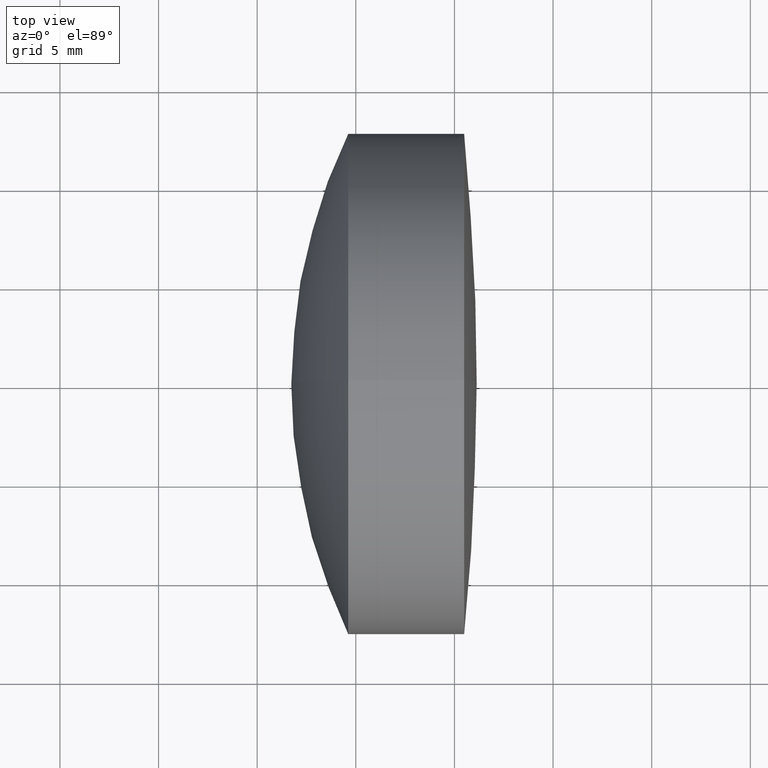
[diagram: clean part render]
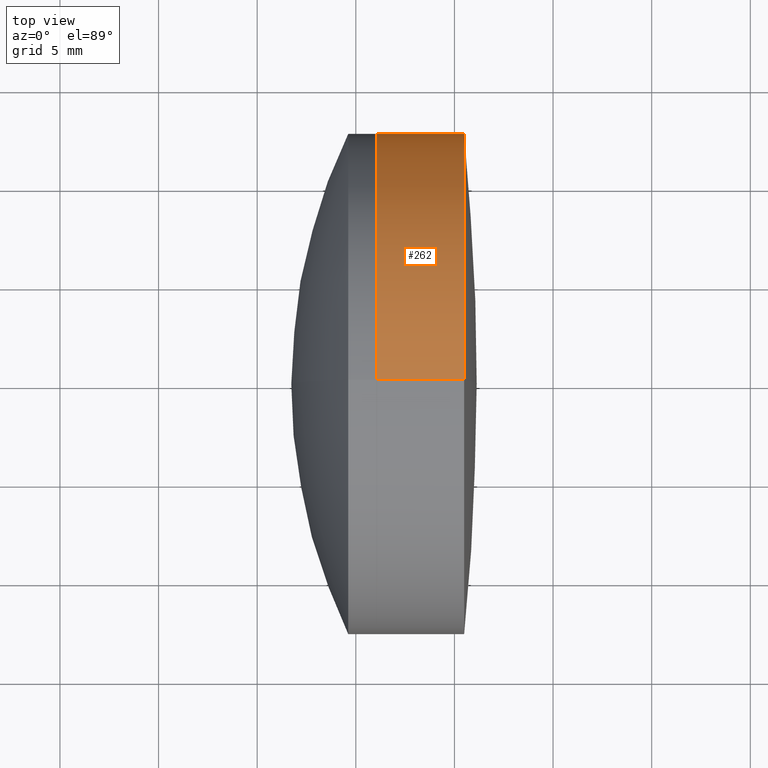
[diagram: same view with one face highlighted and labeled with its STEP entity id]
A machine part, top view. The second image highlights one B-rep face of the part: STEP entity #262.
In plain terms, the highlighted cylindrical surface (partial cylindrical patch) has radius 12.7 mm, axis along (-1, -0, -0).
Its self-contained STEP definition (entity closure, byte-faithful):
#6 = CARTESIAN_POINT ( 'NONE',  ( 290.4926931922049700, 0.0000000000000000000, 12.70000000000000600 ) ) ;
#15 = CIRCLE ( 'NONE', #308, 12.70000000000002400 ) ;
#31 = DIRECTION ( 'NONE',  ( 0.0000000000000000000, 0.0000000000000000000, 1.000000000000000000 ) ) ;
#36 = VECTOR ( 'NONE', #123, 1000.000000000000000 ) ;
#50 = AXIS2_PLACEMENT_3D ( 'NONE', #344, #118, #298 ) ;
#51 = EDGE_CURVE ( 'NONE', #323, #209, #144, .T. ) ;
#96 = EDGE_CURVE ( 'NONE', #302, #209, #15, .T. ) ;
#99 = DIRECTION ( 'NONE',  ( -1.000000000000000000, -0.0000000000000000000, -0.0000000000000000000 ) ) ;
#109 = FACE_OUTER_BOUND ( 'NONE', #274, .T. ) ;
#116 = DIRECTION ( 'NONE',  ( -1.000000000000000000, -0.0000000000000000000, -0.0000000000000000000 ) ) ;
#118 = DIRECTION ( 'NONE',  ( -1.000000000000000000, -0.0000000000000000000, -0.0000000000000000000 ) ) ;
#123 = DIRECTION ( 'NONE',  ( -1.000000000000000000, -0.0000000000000000000, -0.0000000000000000000 ) ) ;
#142 = CARTESIAN_POINT ( 'NONE',  ( 286.0709410747099400, 0.0000000000000000000, 0.0000000000000000000 ) ) ;
#144 = LINE ( 'NONE', #188, #145 ) ;
#145 = VECTOR ( 'NONE', #99, 1000.000000000000000 ) ;
#162 = CARTESIAN_POINT ( 'NONE',  ( 286.0709410747099400, 0.0000000000000000000, 12.70000000000002400 ) ) ;
#163 = CARTESIAN_POINT ( 'NONE',  ( -0.5519199926577972300, 0.0000000000000000000, 12.70000000000001500 ) ) ;
#166 = AXIS2_PLACEMENT_3D ( 'NONE', #193, #218, #291 ) ;
#187 = LINE ( 'NONE', #163, #36 ) ;
#188 = CARTESIAN_POINT ( 'NONE',  ( -0.5519199926577972300, 1.555301434917140400E-015, -12.70000000000001500 ) ) ;
#193 = CARTESIAN_POINT ( 'NONE',  ( 290.4926931922049700, 0.0000000000000000000, 0.0000000000000000000 ) ) ;
#205 = CARTESIAN_POINT ( 'NONE',  ( 290.4926931922049700, 1.555301434917140000E-015, -12.70000000000000600 ) ) ;
#209 = VERTEX_POINT ( 'NONE', #253 ) ;
#218 = DIRECTION ( 'NONE',  ( -1.000000000000000000, -0.0000000000000000000, -0.0000000000000000000 ) ) ;
#220 = CIRCLE ( 'NONE', #166, 12.70000000000000600 ) ;
#227 = ORIENTED_EDGE ( 'NONE', *, *, #327, .T. ) ;
#229 = ORIENTED_EDGE ( 'NONE', *, *, #230, .F. ) ;
#230 = EDGE_CURVE ( 'NONE', #282, #302, #187, .T. ) ;
#253 = CARTESIAN_POINT ( 'NONE',  ( 286.0709410747099400, 1.555301434917141600E-015, -12.70000000000001700 ) ) ;
#262 = ADVANCED_FACE ( 'NONE', ( #109 ), #324, .T. ) ;
#268 = ORIENTED_EDGE ( 'NONE', *, *, #51, .T. ) ;
#274 = EDGE_LOOP ( 'NONE', ( #227, #268, #346, #229 ) ) ;
#282 = VERTEX_POINT ( 'NONE', #6 ) ;
#291 = DIRECTION ( 'NONE',  ( 0.0000000000000000000, 0.0000000000000000000, 1.000000000000000000 ) ) ;
#298 = DIRECTION ( 'NONE',  ( 0.0000000000000000000, 0.0000000000000000000, 1.000000000000000000 ) ) ;
#302 = VERTEX_POINT ( 'NONE', #162 ) ;
#308 = AXIS2_PLACEMENT_3D ( 'NONE', #142, #116, #31 ) ;
#323 = VERTEX_POINT ( 'NONE', #205 ) ;
#324 = CYLINDRICAL_SURFACE ( 'NONE', #50, 12.70000000000001500 ) ;
#327 = EDGE_CURVE ( 'NONE', #282, #323, #220, .T. ) ;
#344 = CARTESIAN_POINT ( 'NONE',  ( -0.5519199926577972300, 0.0000000000000000000, 0.0000000000000000000 ) ) ;
#346 = ORIENTED_EDGE ( 'NONE', *, *, #96, .F. ) ;